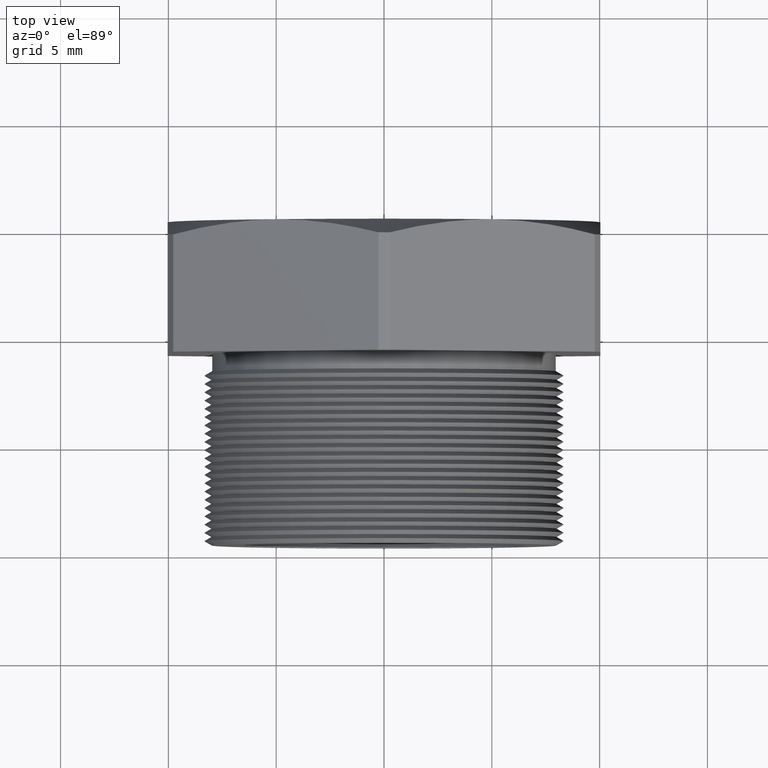
[diagram: clean part render]
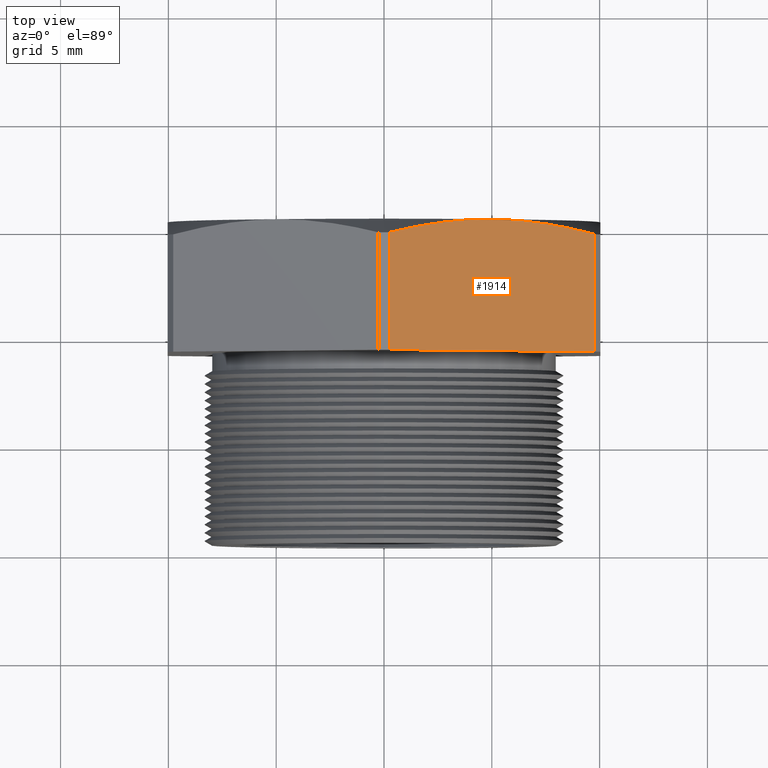
[diagram: same view with one face highlighted and labeled with its STEP entity id]
A machine part, top view. The second image highlights one B-rep face of the part: STEP entity #1914.
In plain terms, the highlighted planar face has unit normal (0.5, -0, 0.866).
Its self-contained STEP definition (entity closure, byte-faithful):
#1823 = VERTEX_POINT ( 'NONE', #5971 ) ;
#1825 = VERTEX_POINT ( 'NONE', #5970 ) ;
#1879 = EDGE_CURVE ( 'NONE', #1823, #1825, #6055, .T. ) ;
#1892 = ORIENTED_EDGE ( 'NONE', *, *, #1893, .T. ) ;
#1893 = EDGE_CURVE ( 'NONE', #1823, #2054, #6087, .T. ) ;
#1894 = ORIENTED_EDGE ( 'NONE', *, *, #2298, .T. ) ;
#1895 = ORIENTED_EDGE ( 'NONE', *, *, #1903, .F. ) ;
#1896 = ORIENTED_EDGE ( 'NONE', *, *, #1897, .F. ) ;
#1897 = EDGE_CURVE ( 'NONE', #1825, #1904, #6086, .T. ) ;
#1903 = EDGE_CURVE ( 'NONE', #1904, #8459, #6129, .T. ) ;
#1904 = VERTEX_POINT ( 'NONE', #6117 ) ;
#1914 = ADVANCED_FACE ( 'NONE', ( #6164 ), #6163, .T. ) ;
#1915 = EDGE_LOOP ( 'NONE', ( #1916, #1892, #1894, #1895, #1896 ) ) ;
#1916 = ORIENTED_EDGE ( 'NONE', *, *, #1879, .F. ) ;
#2054 = VERTEX_POINT ( 'NONE', #6471 ) ;
#2298 = EDGE_CURVE ( 'NONE', #2054, #8459, #6926, .T. ) ;
#5970 = CARTESIAN_POINT ( 'NONE',  ( 0.3847399997329628600, 0.1675548905829479500, 0.2339769702459617900 ) ) ;
#5971 = CARTESIAN_POINT ( 'NONE',  ( 0.3847399997329628600, 0.3817680770869766300, 0.2339769702459618700 ) ) ;
#6055 = LINE ( 'NONE', #6113, #6112 ) ;
#6086 = LINE ( 'NONE', #6145, #6138 ) ;
#6087 = B_SPLINE_CURVE_WITH_KNOTS ( 'NONE', 3,
 ( #6144, #6143, #6142, #6141, #6140, #6139 ),
 .UNSPECIFIED., .F., .F.,
 ( 4, 2, 4 ),
 ( 2.335025902608840200E-007, 0.002760212844509911800, 0.005520192186429562900 ),
 .UNSPECIFIED. ) ;
#6111 = DIRECTION ( 'NONE',  ( -0.0000000000000000000, -1.000000000000000000, -0.0000000000000000000 ) ) ;
#6112 = VECTOR ( 'NONE', #6111, 39.37007874015748100 ) ;
#6113 = CARTESIAN_POINT ( 'NONE',  ( 0.3847399997329628000, 0.0000000000000000000, 0.2339769702459619500 ) ) ;
#6117 = CARTESIAN_POINT ( 'NONE',  ( 0.01026000026703746700, 0.1675548905829479500, 0.4501830987437449600 ) ) ;
#6118 = DIRECTION ( 'NONE',  ( 0.0000000000000000000, 1.000000000000000000, 0.0000000000000000000 ) ) ;
#6119 = VECTOR ( 'NONE', #6118, 39.37007874015748100 ) ;
#6121 = CARTESIAN_POINT ( 'NONE',  ( 0.01026000026703756900, 0.0000000000000000000, 0.4501830987437449000 ) ) ;
#6129 = LINE ( 'NONE', #6121, #6119 ) ;
#6137 = DIRECTION ( 'NONE',  ( -0.8660254037844384900, 0.0000000000000000000, 0.5000000000000001100 ) ) ;
#6138 = VECTOR ( 'NONE', #6137, 39.37007874015748900 ) ;
#6139 = CARTESIAN_POINT ( 'NONE',  ( 0.1975000000000001800, 0.4075548905829479700, 0.3420800344948533000 ) ) ;
#6140 = CARTESIAN_POINT ( 'NONE',  ( 0.2289182622552071400, 0.4075548905829479200, 0.3239406923243393100 ) ) ;
#6141 = CARTESIAN_POINT ( 'NONE',  ( 0.2602199223343858400, 0.4051865378565922500, 0.3058686704515431500 ) ) ;
#6142 = CARTESIAN_POINT ( 'NONE',  ( 0.3226184986981740500, 0.3962912005447679100, 0.2698428355908607500 ) ) ;
#6143 = CARTESIAN_POINT ( 'NONE',  ( 0.3537166105170320200, 0.3897884989263424300, 0.2518883323609538100 ) ) ;
#6144 = CARTESIAN_POINT ( 'NONE',  ( 0.3847399997329628600, 0.3817680770869766300, 0.2339769702459618700 ) ) ;
#6145 = CARTESIAN_POINT ( 'NONE',  ( 0.4337500000000000200, 0.1675548905829479500, 0.2056810333988042200 ) ) ;
#6158 = DIRECTION ( 'NONE',  ( 0.8660254037844384900, 0.0000000000000000000, -0.5000000000000001100 ) ) ;
#6159 = DIRECTION ( 'NONE',  ( 0.5000000000000002200, -0.0000000000000000000, 0.8660254037844386000 ) ) ;
#6160 = AXIS2_PLACEMENT_3D ( 'NONE', #6162, #6159, #6158 ) ;
#6162 = CARTESIAN_POINT ( 'NONE',  ( 0.3949999999999999100, 0.4075548905829479700, 0.2280533563299023100 ) ) ;
#6163 = PLANE ( 'NONE',  #6160 ) ;
#6164 = FACE_OUTER_BOUND ( 'NONE', #1915, .T. ) ;
#6471 = CARTESIAN_POINT ( 'NONE',  ( 0.1975000000000001800, 0.4075548905829479700, 0.3420800344948533000 ) ) ;
#6918 = CARTESIAN_POINT ( 'NONE',  ( 0.01026000026703751200, 0.3817680770869766900, 0.4501830987437447900 ) ) ;
#6919 = CARTESIAN_POINT ( 'NONE',  ( 0.04113558834110836400, 0.3897502881590467200, 0.4323570696577920300 ) ) ;
#6920 = CARTESIAN_POINT ( 'NONE',  ( 0.07225680565382748600, 0.3962764420413619800, 0.4143892264647847100 ) ) ;
#6921 = CARTESIAN_POINT ( 'NONE',  ( 0.1350411223813807200, 0.4052207272773963300, 0.3781406843012452000 ) ) ;
#6922 = CARTESIAN_POINT ( 'NONE',  ( 0.1663280206471310600, 0.4075548905829478600, 0.3600771851654059300 ) ) ;
#6923 = CARTESIAN_POINT ( 'NONE',  ( 0.1975000000000001800, 0.4075548905829479700, 0.3420800344948533000 ) ) ;
#6926 = B_SPLINE_CURVE_WITH_KNOTS ( 'NONE', 3,
 ( #6923, #6922, #6921, #6920, #6919, #6918 ),
 .UNSPECIFIED., .F., .F.,
 ( 4, 2, 4 ),
 ( 0.005520192186429562900, 0.008258536476824101400, 0.01099688076721864200 ),
 .UNSPECIFIED. ) ;
#8208 = CARTESIAN_POINT ( 'NONE',  ( 0.01026000026703751200, 0.3817680770869766900, 0.4501830987437447900 ) ) ;
#8459 = VERTEX_POINT ( 'NONE', #8208 ) ;